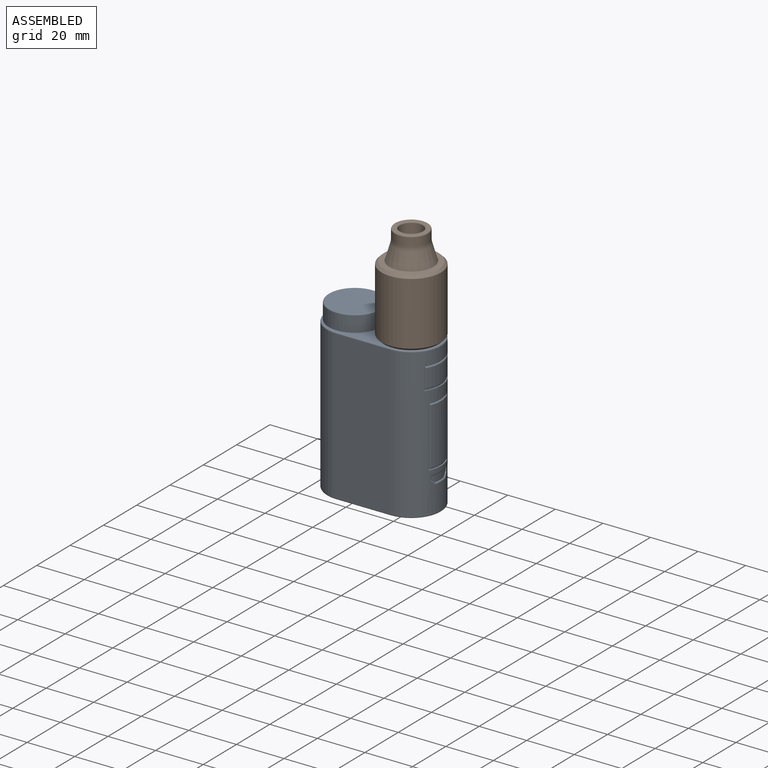
[diagram: assembled view]
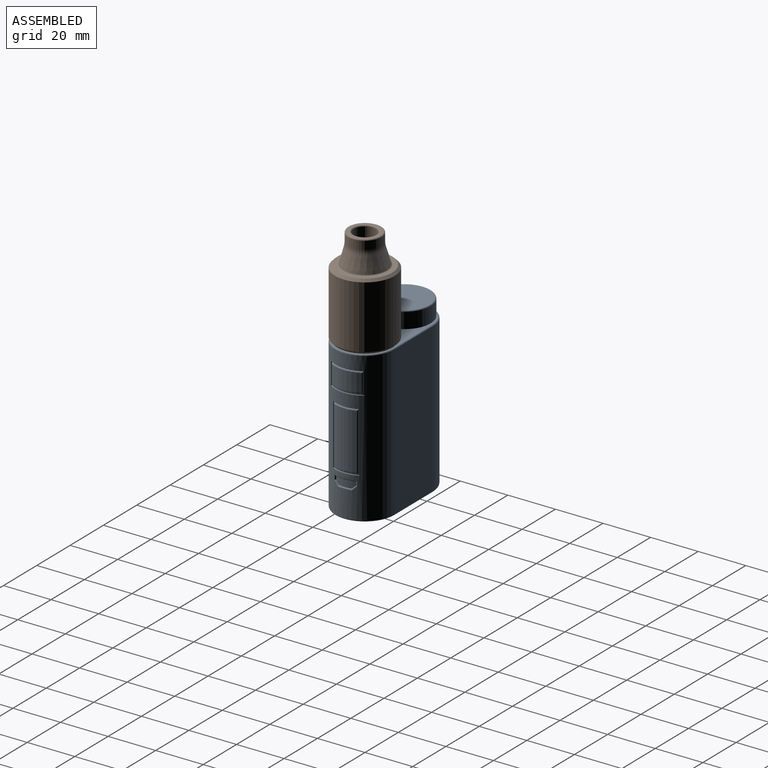
[diagram: assembled view, second angle]
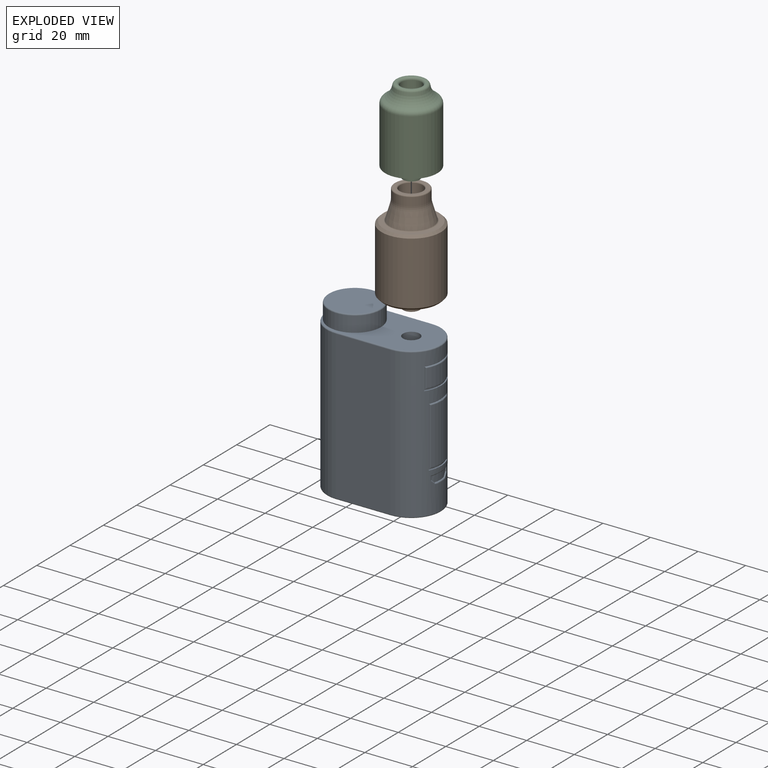
[diagram: exploded view]
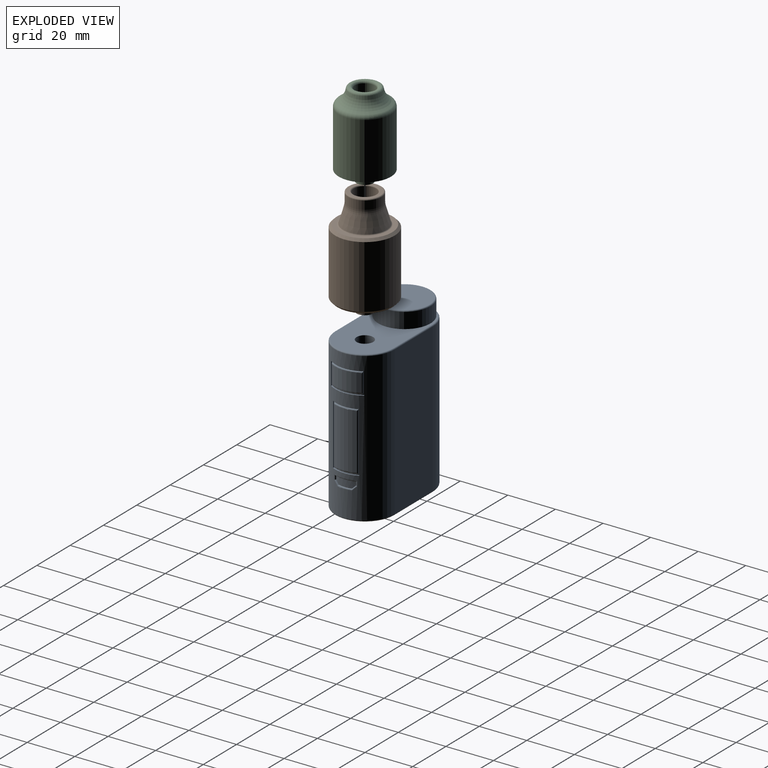
[diagram: exploded view, second angle]
ASSEMBLY  parts=3 mates=4
PART A: 73 faces, bbox 50.1x27.1x70.5 mm
  f0: cylinder r=12.5mm len=62.5mm, axis (0,0,-1), area 1985.9mm2, adj f2,f4,f35,f36,f38,f39,f43,f45
  f1: plane 47x24mm, normal (0,0,-1), area 808.8mm2, adj f10,f12,f14,f16,f18,f20,f22,f24
  f2: plane 62.5x23mm, normal (0,1,0), area 1437.5mm2, adj f0,f3,f53,f57
  f3: cylinder r=12.5mm len=62.5mm, axis (0,0,-1), area 2454.4mm2, adj f2,f4,f52,f56
  f4: plane 62.5x23mm, normal (0,-1,0), area 1437.5mm2, adj f0,f3,f50,f54
  f5: plane 47x24mm, normal (0,0,1), area 585.8mm2, adj f6,f8,f54,f55,f56,f57
  f6: cylinder r=11mm len=22mm, axis (0,0,-1), area 449.2mm2, adj f5,f72
  f7: plane 21x21mm, normal (0,0,1), area 346.4mm2, adj f72
  f8: cylinder r=3.5mm len=7mm, axis (0,0,1), area 99mm2, adj f5,f9
  f9: plane 7x7mm, normal (0,0,1), area 38.5mm2, adj f8
  f10: cylinder r=0.5mm len=1mm, axis (0,0,-1), area 3.1mm2, adj f1,f11
  f11: plane 1x1mm, normal (0,0,-1), area 0.8mm2, adj f10
  f12: cylinder r=0.5mm len=1mm, axis (0,0,-1), area 3.1mm2, adj f1,f13
  f13: plane 1x1mm, normal (0,0,-1), area 0.8mm2, adj f12
  f14: cylinder r=0.5mm len=1mm, axis (0,0,-1), area 3.1mm2, adj f1,f15
  f15: plane 1x1mm, normal (0,0,-1), area 0.8mm2, adj f14
  f16: cylinder r=0.5mm len=1mm, axis (0,0,-1), area 3.1mm2, adj f1,f17
  f17: plane 1x1mm, normal (0,0,-1), area 0.8mm2, adj f16
  f18: cylinder r=0.5mm len=1mm, axis (0,0,-1), area 3.1mm2, adj f1,f19
  f19: plane 1x1mm, normal (0,0,-1), area 0.8mm2, adj f18
  f20: cylinder r=0.5mm len=1mm, axis (0,0,-1), area 3.1mm2, adj f1,f21
  f21: plane 1x1mm, normal (0,0,-1), area 0.8mm2, adj f20
  f22: cylinder r=0.5mm len=1mm, axis (0,0,-1), area 3.1mm2, adj f1,f23
  f23: plane 1x1mm, normal (0,0,-1), area 0.8mm2, adj f22
  f24: cylinder r=0.5mm len=1mm, axis (0,0,-1), area 3.1mm2, adj f1,f25
  f25: plane 1x1mm, normal (0,0,-1), area 0.8mm2, adj f24
  f26: cylinder r=0.5mm len=1mm, axis (0,0,-1), area 3.1mm2, adj f1,f27
  f27: plane 1x1mm, normal (0,0,-1), area 0.8mm2, adj f26
  f28: plane 19x8mm, normal (0,0,-1), area 138.3mm2, adj f29,f30,f31,f32
  f29: cone r=4mm half-angle=45deg, axis (0,0,-1), area 20mm2, adj f1,f28,f30,f31
  f30: plane 11x1mm, normal (0.71,0,-0.71), area 15.6mm2, adj f1,f28,f29,f32
  f31: plane 11x1mm, normal (-0.71,0,-0.71), area 15.6mm2, adj f1,f28,f29,f32
  f32: cone r=4mm half-angle=45deg, axis (0,0,-1), area 20mm2, adj f1,f28,f30,f31
  f33: cylinder r=12mm len=8.5mm, axis (0,0,1), area 23.7mm2, adj f66,f67,f68,f69,f70,f71
  f34: plane 24.5x0.22mm, normal (0,-1,0), area 5.3mm2, adj f40,f62,f63,f64
  f35: plane 25.5x0.56mm, normal (0,1,0), area 14.3mm2, adj f0,f36,f38,f40
  f36: plane 11x1.83mm, normal (0,0,1), area 5.7mm2, adj f0,f35,f39,f40
  f37: plane 24.5x0.22mm, normal (0,1,0), area 5.3mm2, adj f40,f63,f64,f65
  f38: plane 11x1.83mm, normal (0,0,-1), area 5.7mm2, adj f0,f35,f39,f40
  f39: plane 25.5x0.56mm, normal (0,-1,0), area 14.3mm2, adj f0,f36,f38,f40
  f40: cylinder r=12mm len=25.5mm, axis (0,0,1), area 38.7mm2, adj f34,f35,f36,f37,f38,f39,f63,f64
  f41: cylinder r=12.5mm len=23.5mm, axis (0,0,-1), area 225.8mm2, adj f62,f63,f64,f65
  f42: plane 8.51x0.31mm, normal (0,-1,0), area 2.6mm2, adj f48,f59,f60,f61
  f43: plane 9.5x0.61mm, normal (0,-1,0), area 5.8mm2, adj f0,f45,f46,f48
  f44: plane 8.51x0.31mm, normal (0,1,0), area 2.6mm2, adj f48,f58,f59,f60
  f45: plane 14x2.75mm, normal (0,0,1), area 7.5mm2, adj f0,f43,f47,f48
  f46: plane 14x2.75mm, normal (0,0,-1), area 7.5mm2, adj f0,f43,f47,f48
  f47: plane 9.5x0.61mm, normal (0,1,0), area 5.8mm2, adj f0,f45,f46,f48
  f48: cylinder r=12mm len=14mm, axis (0,0,1), area 25.2mm2, adj f42,f43,f44,f45,f46,f47,f59,f60
  f49: cylinder r=12.5mm len=12.5mm, axis (0,0,-1), area 98.2mm2, adj f58,f59,f60,f61
  f50: cylinder r=0.5mm len=23mm, axis (1,0,0), area 18.1mm2, adj f1,f4,f51,f52
  f51: torus R=12mm, axis (0,0,1), area 30.4mm2, adj f0,f1,f50,f53
  f52: torus R=12mm, axis (0,0,1), area 30.4mm2, adj f1,f3,f50,f53
  f53: cylinder r=0.5mm len=23mm, axis (-1,0,0), area 18.1mm2, adj f1,f2,f51,f52
  f54: cylinder r=0.5mm len=23mm, axis (-1,0,0), area 18.1mm2, adj f4,f5,f55,f56
  f55: torus R=12mm, axis (0,0,1), area 30.4mm2, adj f0,f5,f54,f57
  f56: torus R=12mm, axis (0,0,1), area 30.4mm2, adj f3,f5,f54,f57
  f57: cylinder r=0.5mm len=23mm, axis (1,0,0), area 18.1mm2, adj f2,f5,f55,f56
  f58: cylinder r=0.5mm len=8.36mm, axis (0,0,-1), area 4.2mm2, adj f44,f49,f59,f60
  f59: torus R=12mm, axis (0,0,-1), area 10.6mm2, adj f42,f44,f48,f49,f58,f61
  f60: torus R=12mm, axis (0,0,-1), area 10.6mm2, adj f42,f44,f48,f49,f58,f61
  f61: cylinder r=0.5mm len=8.36mm, axis (0,0,-1), area 4.2mm2, adj f42,f49,f59,f60
  f62: cylinder r=0.5mm len=24.42mm, axis (0,0,-1), area 14.2mm2, adj f34,f41,f63,f64
  f63: torus R=12mm, axis (0,0,-1), area 7.9mm2, adj f34,f37,f40,f41,f62,f65
  f64: torus R=12mm, axis (0,0,-1), area 7.9mm2, adj f34,f37,f40,f41,f62,f65
  f65: cylinder r=0.5mm len=24.42mm, axis (0,0,-1), area 14.2mm2, adj f37,f41,f63,f64
  f66: bspline ~4.51x4.35mm, area 1.9mm2, adj f0,f33,f67,f68
  f67: torus R=12mm, axis (0,0,-1), area 4.6mm2, adj f0,f33,f66,f69
  f68: cylinder r=0.5mm len=2.22mm, axis (0,0,1), area 1.5mm2, adj f0,f33,f66,f70
  f69: bspline ~2.3x2.15mm, area 1.9mm2, adj f0,f33,f67,f71
  f70: torus R=12mm, axis (0,0,-1), area 7.4mm2, adj f0,f33,f68,f71
  f71: cylinder r=0.5mm len=2.22mm, axis (0,0,-1), area 1.5mm2, adj f0,f33,f69,f70
  f72: torus R=10.5mm, axis (0,0,1), area 53.4mm2, adj f6,f7
PART B: 16 faces, bbox 25x25x46.7 mm
  f0: cylinder r=3.5mm len=7mm, axis (0,0,-1), area 99mm2, adj f1,f4
  f1: plane 7x7mm, normal (0,0,-1), area 38.5mm2, adj f0
  f2: cylinder r=12.5mm len=26.5mm, axis (0,0,-1), area 2081.3mm2, adj f14,f15
  f3: plane 23x23mm, normal (0,0,1), area 124.4mm2, adj f12,f15
  f4: plane 23x23mm, normal (0,0,-1), area 377mm2, adj f0,f14
  f5: cone r=7mm half-angle=16.3deg, axis (0,0,-1), area 342.9mm2, adj f12,f13
  f6: cylinder r=7mm len=14mm, axis (0,0,-1), area 153.9mm2, adj f10,f13
  f7: plane 13x13mm, normal (0,0,1), area 46.1mm2, adj f10,f11
  f8: cylinder r=4.75mm len=12.2mm, axis (0,0,-1), area 364.1mm2, adj f9,f11
  f9: plane 9.5x9.5mm, normal (0,0,1), area 70.9mm2, adj f8
  f10: torus R=6.5mm, axis (0,0,-1), area 33.6mm2, adj f6,f7
  f11: torus R=5.25mm, axis (0,0,-1), area 24.3mm2, adj f7,f8
  f12: torus R=9.62mm, axis (0,0,1), area 37.8mm2, adj f3,f5
  f13: torus R=14mm, axis (0,0,-1), area 88.7mm2, adj f5,f6
  f14: cone r=12.5mm half-angle=45deg, axis (0,0,1), area 106.6mm2, adj f2,f4
  f15: cone r=11.5mm half-angle=45deg, axis (0,0,-1), area 106.6mm2, adj f2,f3
PART C: 11 faces, bbox 29.1x29.1x36 mm
  f0: cylinder r=3.5mm len=7mm, axis (0,0,-1), area 99mm2, adj f1,f3
  f1: plane 7x7mm, normal (0,0,-1), area 38.5mm2, adj f0
  f2: cylinder r=11mm len=23.74mm, axis (0,0,-1), area 1640.6mm2, adj f3,f8
  f3: plane 22x22mm, normal (0,0,-1), area 341.6mm2, adj f0,f2
  f4: plane 11.13x11.13mm, normal (0,0,1), area 10.6mm2, adj f9,f10
  f5: cylinder r=4.25mm len=8.5mm, axis (0,0,-1), area 146.9mm2, adj f7,f9
  f6: torus R=13.44mm, axis (0,0,-1), area 317.6mm2, adj f8,f10
  f7: plane 8.5x8.5mm, normal (0,0,1), area 56.7mm2, adj f5
  f8: torus R=9mm, axis (0,0,-1), area 140.7mm2, adj f2,f6
  f9: torus R=5.25mm, axis (0,0,-1), area 45.5mm2, adj f4,f5
  f10: torus R=5.56mm, axis (0,0,1), area 56mm2, adj f4,f6
PLACE A at identity fixed
PLACE B t=(11.5,0,59)mm
PLACE C t=(11.5,0,59)mm
MATE planar A.f8 <-> B.f2  axis (0,0,1) through (11.5,0,63.5)mm
MATE cylindrical A.f8 <-> B.f0  axis (0,0,1) through (11.5,0,61.25)mm
MATE planar C.f2 <-> A.f8  axis (0,0,-1) through (11.5,0,63.5)mm
MATE cylindrical C.f0 <-> A.f8  axis (0,0,-1) through (11.5,0,61.25)mm
